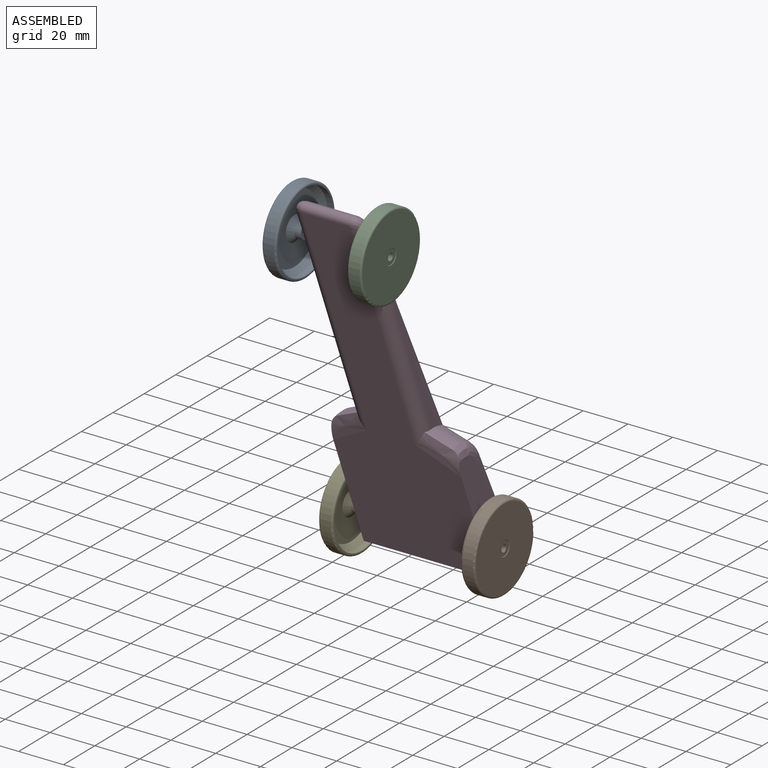
[diagram: assembled view]
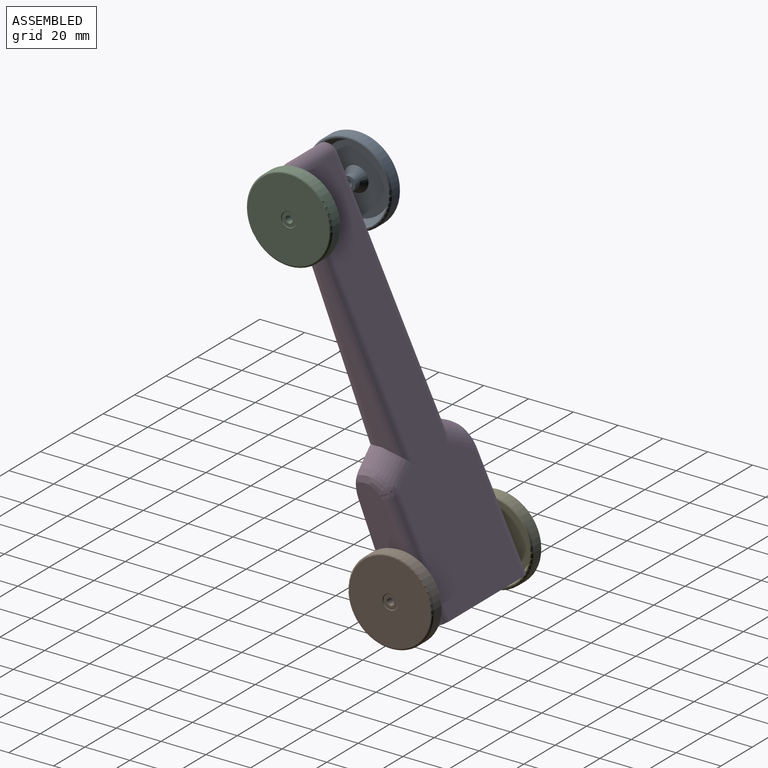
[diagram: assembled view, second angle]
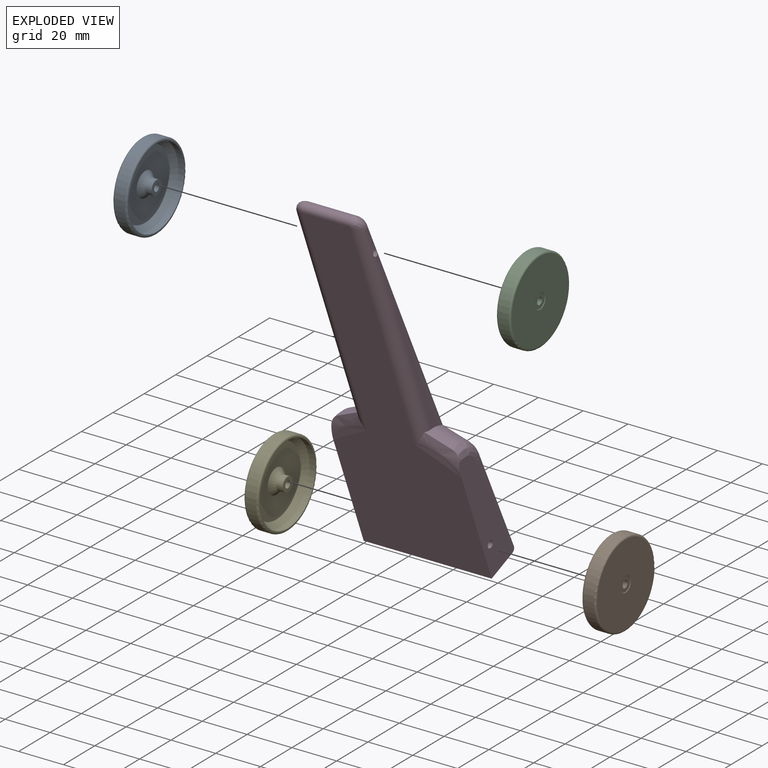
[diagram: exploded view]
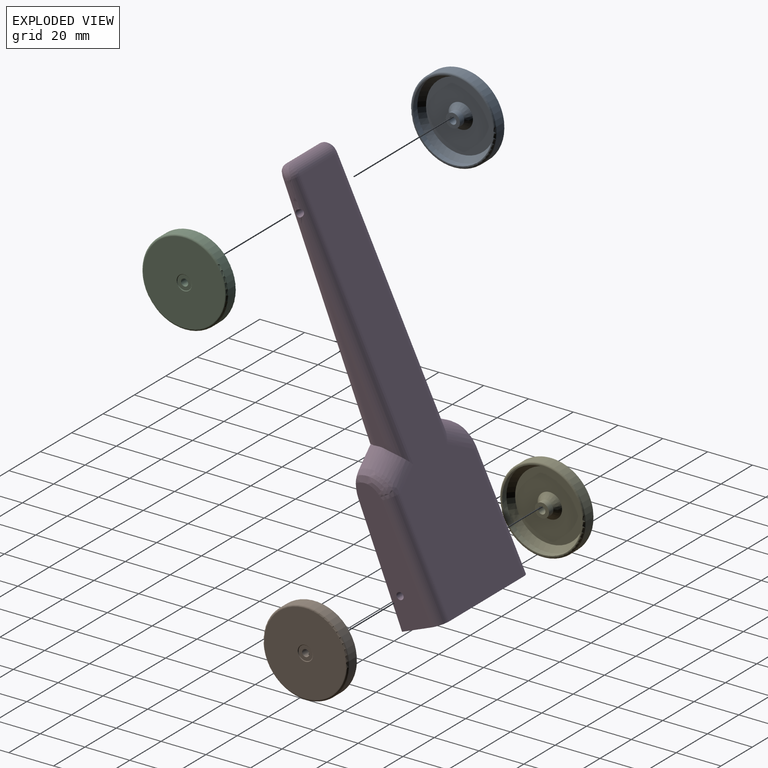
[diagram: exploded view, second angle]
ASSEMBLY  parts=5 mates=8
PART A: 18 faces, bbox 41.2x6.4x41.2 mm
  f0: cylinder r=1.59mm len=6.1mm, axis (0,-1,0), area 60.8mm2, adj f7,f8
  f1: cylinder r=19.05mm len=38.1mm, axis (0,1,0), area 547.2mm2, adj f10,f11
  f2: plane 36.32x36.32mm, normal (0,-1,0), area 43mm2, adj f5,f11
  f3: plane 36.32x36.32mm, normal (0,1,0), area 999.2mm2, adj f9,f10
  f4: cylinder r=3.17mm len=6.35mm, axis (0,-1,0), area 54.7mm2, adj f7,f17
  f5: cylinder r=17.78mm len=35.56mm, axis (0,-1,0), area 306.3mm2, adj f2,f14
  f6: plane 30.88x30.88mm, normal (0,-1,0), area 653.6mm2, adj f15,f16
  f7: plane 6.35x6.35mm, normal (0,-1,0), area 23.8mm2, adj f0,f4
  f8: plane 6.35x6.35mm, normal (0,1,0), area 23.8mm2, adj f0,f9
  f9: torus R=3.43mm, axis (0,-1,0), area 8.2mm2, adj f3,f8
  f10: torus R=18.16mm, axis (0,-1,0), area 164.3mm2, adj f1,f3
  f11: torus R=18.16mm, axis (0,-1,0), area 164.3mm2, adj f1,f2
  f12: cone r=3.17mm half-angle=45deg, axis (0,1,0), area 84.9mm2, adj f15,f17
  f13: cone r=15.49mm half-angle=45deg, axis (0,-1,0), area 326.9mm2, adj f14,f16
  f14: torus R=17.65mm, axis (0,1,0), area 11.1mm2, adj f5,f13
  f15: torus R=5.51mm, axis (0,-1,0), area 3.4mm2, adj f6,f12
  f16: torus R=15.44mm, axis (0,-1,0), area 9.7mm2, adj f6,f13
  f17: torus R=3.3mm, axis (0,-1,0), area 2mm2, adj f4,f12
PART B: same geometry as A
PART C: same geometry as A
PART D: 29 faces, bbox 65.5x179.9x19.2 mm
  f0: plane 58.35x14.01mm, normal (1,0,0), area 669.8mm2, adj f2,f5,f6,f24,f27,f28
  f1: plane 58.35x14.01mm, normal (-1,0,0), area 669.8mm2, adj f2,f5,f6,f23,f25,f26
  f2: plane 57.3x19.2mm, normal (0,1,0), area 1077.6mm2, adj f0,f1,f3,f6,f26,f28
  f3: plane 171.9x46.99mm, normal (0,-0.07,1), area 5094.4mm2, adj f2,f4,f10,f11,f15,f18,f26,f28
  f4: cylinder r=6.35mm len=21.59mm, axis (-1,0,0), area 125.4mm2, adj f3,f12,f17,f19
  f5: cylinder r=1.59mm len=57.15mm, axis (-1,0,0), area 570mm2, adj f0,f1
  f6: plane 174.63x57.25mm, normal (0,0,-1), area 5813mm2, adj f0,f1,f2,f12,f14,f22,f23,f24
  f7: plane 58.73x4.37mm, normal (-1,0,0), area 117.5mm2, adj f11,f18,f22
  f8: plane 58.73x4.37mm, normal (1,0,0), area 117.5mm2, adj f10,f14,f15
  f9: cylinder r=1.59mm len=30.58mm, axis (-1,0,0), area 303.9mm2, adj f13,f15,f18,f20
  f10: cylinder r=12.7mm len=20.43mm, axis (0.88,0.47,0.03), area 239.6mm2, adj f3,f8,f14,f15,f24,f27
  f11: cylinder r=12.7mm len=20.43mm, axis (0.88,-0.47,-0.03), area 239.6mm2, adj f3,f7,f18,f22,f23,f25
  f12: cylinder r=2.54mm len=21.59mm, axis (-1,0,0), area 118.2mm2, adj f4,f6,f16,f21
  f13: bspline ~52.14x3.71mm, area 63.9mm2, adj f9,f14,f15,f16
  f14: cylinder r=5.08mm len=111.91mm, axis (0,-1,0), area 761.2mm2, adj f6,f8,f10,f13,f16,f24
  f15: cylinder r=5.08mm len=114.95mm, axis (0,1,0.07), area 794.6mm2, adj f3,f8,f9,f10,f13,f17
  f16: bspline ~8.35x6.8mm, area 34.1mm2, adj f12,f13,f14,f17
  f17: torus R=1.27mm, axis (-1,0,0), area 11.9mm2, adj f4,f15,f16
  f18: cylinder r=5.08mm len=114.95mm, axis (0,-1,-0.07), area 794.6mm2, adj f3,f7,f9,f11,f19,f20
  f19: torus R=1.27mm, axis (1,0,0), area 11.9mm2, adj f4,f18,f21
  f20: bspline ~52.14x3.71mm, area 48.2mm2, adj f9,f18,f21,f22
  f21: bspline ~8.35x6.8mm, area 34.1mm2, adj f12,f19,f20,f22
  f22: cylinder r=5.08mm len=111.91mm, axis (0,1,0), area 760.2mm2, adj f6,f7,f11,f20,f21,f23
  f23: bspline ~21.86x16.64mm, area 140.5mm2, adj f1,f6,f11,f22,f25
  f24: bspline ~21.86x16.64mm, area 140.5mm2, adj f0,f6,f10,f14,f27
  f25: bspline ~15.43x12.57mm, area 109.8mm2, adj f1,f11,f23,f26
  f26: cylinder r=5.08mm len=50.93mm, axis (0,-1,-0.07), area 403.1mm2, adj f1,f2,f3,f25
  f27: bspline ~15.43x12.57mm, area 109.8mm2, adj f0,f10,f24,f28
  f28: cylinder r=5.08mm len=50.93mm, axis (0,1,0.07), area 403.1mm2, adj f0,f2,f3,f27
PART E: same geometry as A
PLACE A rot(axis=(0.01,-0.01,1),90deg) t=(-24.98,51.94,122.58)mm
PLACE B rot(axis=(-0.71,-0.71,-0.02),178deg) t=(32.17,106.16,-12.41)mm
PLACE C rot(axis=(0.3,0.3,-0.9),95.8deg) t=(19.47,53.07,122.97)mm
PLACE D rot(axis=(-1,0,0),68.1deg) t=(-31.33,74.51,56.05)mm
PLACE E rot(axis=(0.02,-0.02,1),90deg) t=(-37.68,106.16,-12.41)mm
MATE cylindrical A.f0 <-> D.f9  axis (1,0,0) through (-21.67,52.57,122.59)mm
MATE cylindrical B.f0 <-> D.f5  axis (-1,0,0) through (28.87,106.79,-12.38)mm
MATE cylindrical E.f0 <-> D.f5  axis (1,0,0) through (-31.33,106.79,-12.38)mm
MATE planar B.f0 <-> D.f0  axis (-1,0,0) through (25.82,106.79,-12.38)mm
MATE planar C.f0 <-> D.f8  axis (-1,0,0) through (13.12,52.57,122.59)mm
MATE cylindrical C.f0 <-> D.f9  axis (-1,0,0) through (13.12,52.57,122.59)mm
MATE planar A.f0 <-> D.f7  axis (1,0,0) through (-18.63,52.57,122.59)mm
MATE planar E.f0 <-> D.f1  axis (1,0,0) through (-31.33,106.79,-12.38)mm
